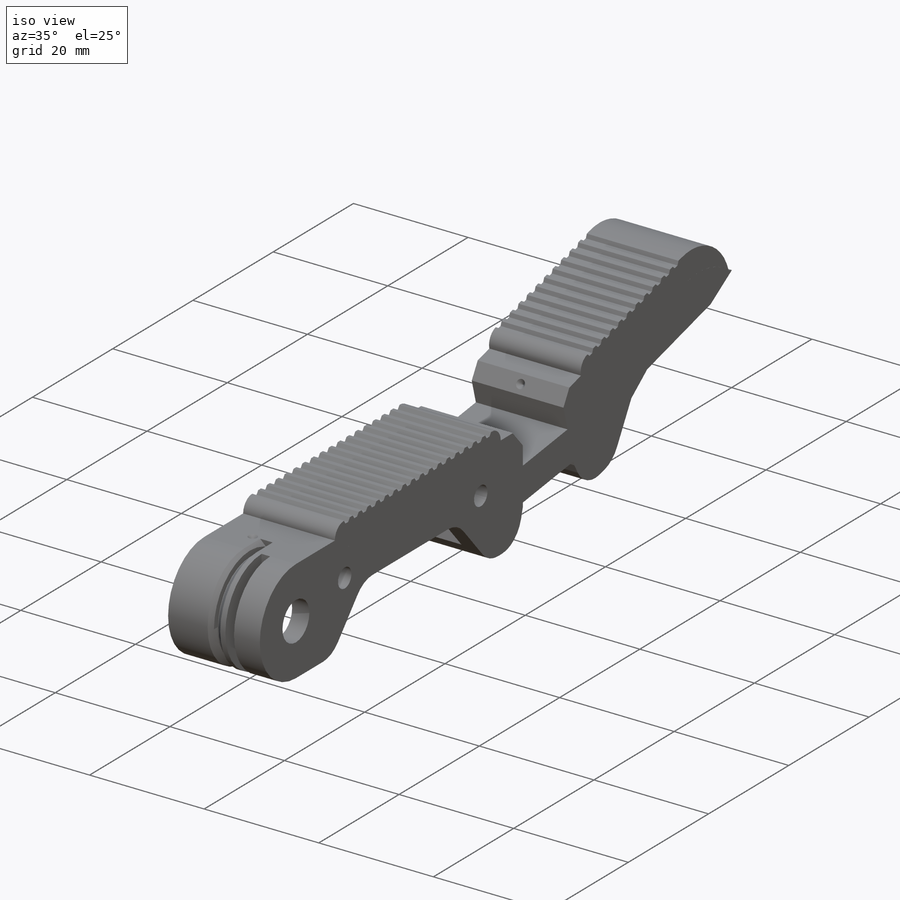
[diagram: iso view]
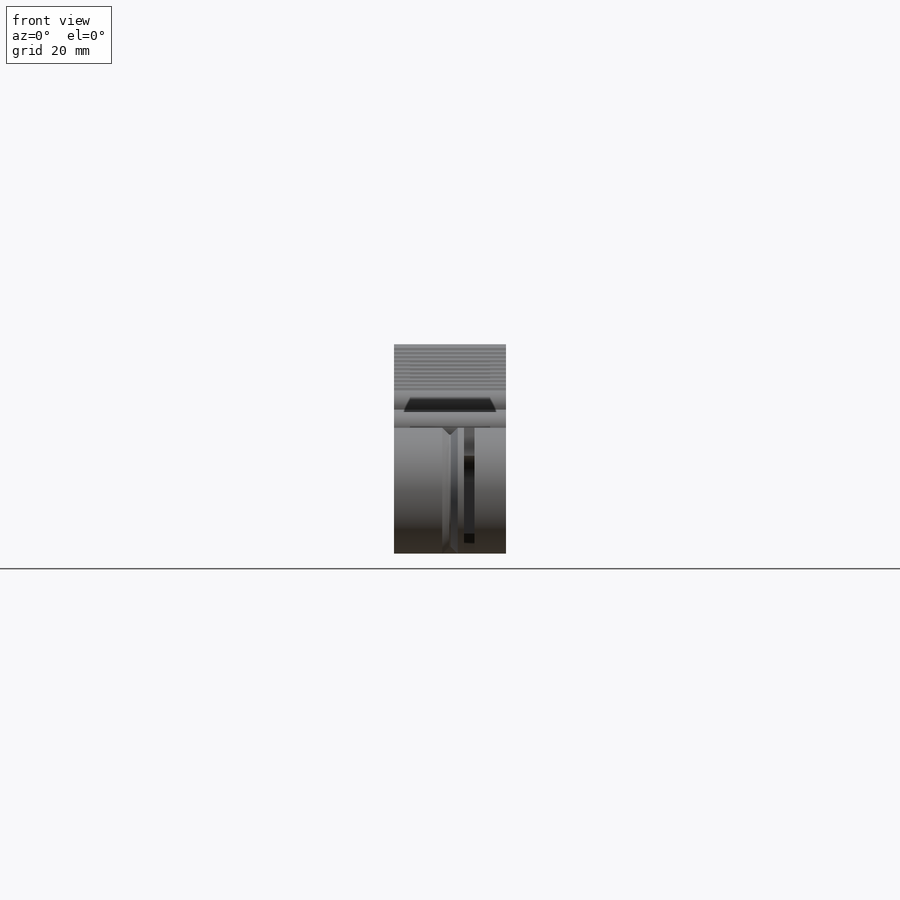
[diagram: front view]
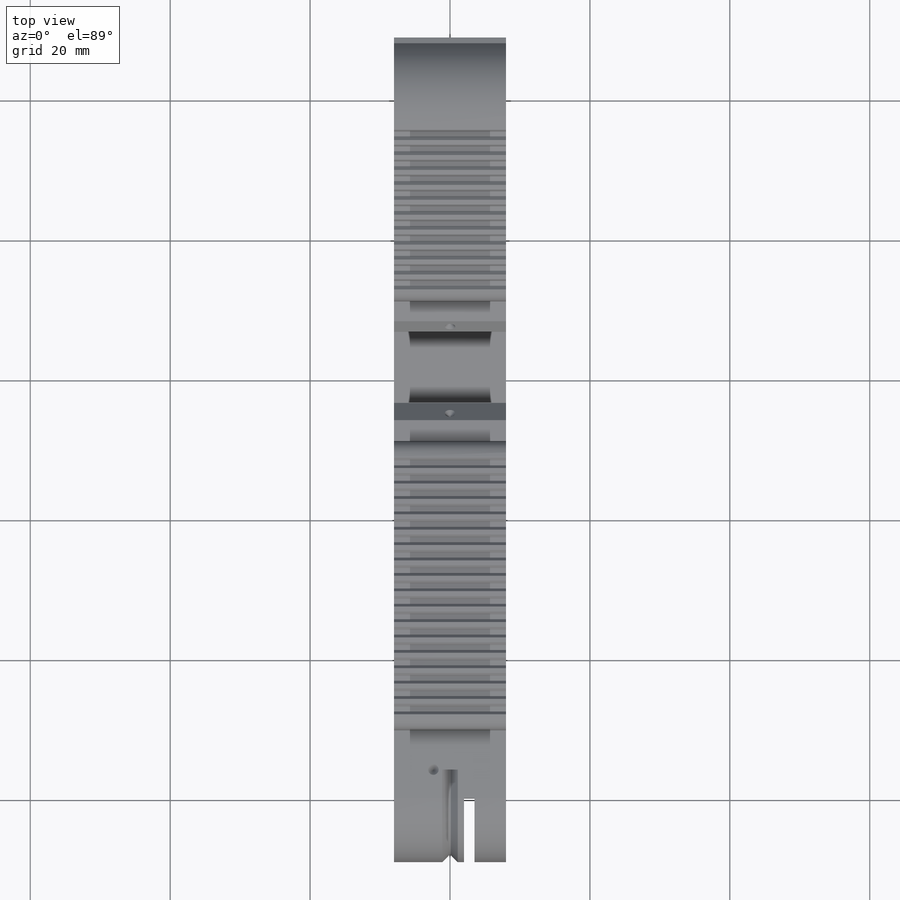
[diagram: top view]
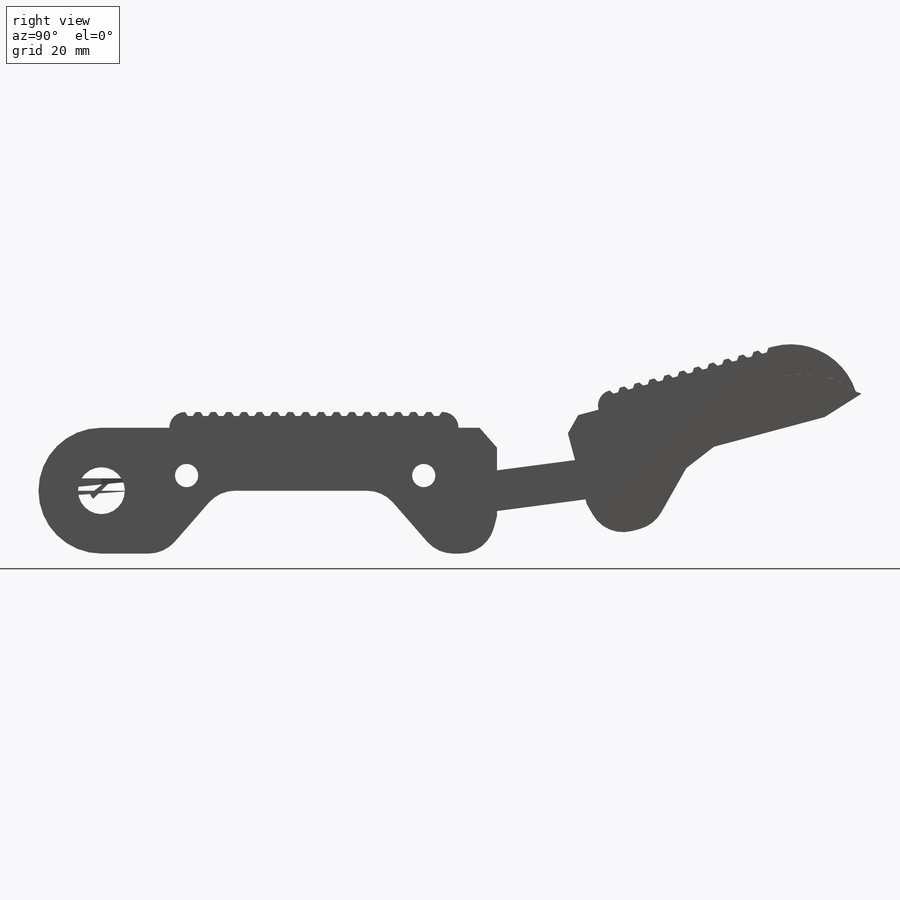
[diagram: right view]
SOLIDWORKS PART (.sldprt)
format: sldprt  version: not decoded by parser v0  size: 2,024,960 bytes
history: native  units: mm
features: sketch x28, cut_extrude x17, extrude x11, chamfer x6, boolean_combine x2, material x1, fillet x1 + 2 further entries (+28 scaffold rows collapsed; 11 parser-record rows omitted)
feature tree (107):
  scaffold x28  (default folders/planes/origin — collapsed)
  material  "ABS"
  "params_finger_t"
  parser-record x11  (decoder bookkeeping rows leaked as tree rows — omitted from the tree; the rows remain in map.json)
  "params_print"
  sketch  "Sketch1"  dims[c1.D1=6.35mm c1.D2=62.5mm c1.D3=12.0mm c1.D4=37.5mm c1.D5=~31.608342mm c2.D5=15.0deg c2.D6=~7.168137mm c2.D7=18.0mm]
  extrude  "Finger Frame"  Depth=16mm
  sketch  "Sketch2"  dims[D3=2.25mm D4=1.5mm D1=0.7mm D2=3.0mm]
  cut_extrude  "Cavity - Flexure"  [1 undecoded]
  sketch  "Sketch3"  dims[D1=1.5mm]
  extrude  "Flexure Anchors"  [1 undecoded]
  sketch  "Sketch4"  dims[D5=3.175mm D1=1.5mm D2=8.0mm D3=1.5mm D4=8.0mm D6=6.8375mm D7=3.0mm D8=12.175mm]
  cut_extrude  "Tendon Routing Features"  [1 undecoded]
  sketch  "Sketch5"  dims[D2=1.5mm D1=1.5mm]
  cut_extrude  "Tendon Port 1"  Depth=0.75mm
  sketch  "Sketch6"  dims[D2=1.5mm D1=1.5mm]
  cut_extrude  "Tendon Port 2"  Depth=0.75mm
  chamfer  "Tendon Port Contouring"  Distance=0.75mm Angle=45deg
  sketch  "Sketch7"  dims[D1=2.3mm D2=2.3mm D3=2.95mm D4=9.0mm]
  extrude  "Finger Pad Outline"  [1 undecoded]
  sketch  "Sketch8"  dims[D1=8.5mm]
  cut_extrude  "Finger Outline"  [1 undecoded]
  sketch  "Sketch9"  dims[D3=0.7mm D1=0.7mm D2=0.7mm]
  cut_extrude  "Cavity - Finger Pads"  [1 undecoded]
  sketch  "Sketch10"
  extrude  "Pad Hooks"  Depth=13mm
  sketch  "Sketch11"  dims[D1=~36.849828mm D2=~24.18954mm D3=0.7mm D4=1.5mm D6=2.2mm D8=2.2mm D5=17.0 D7=11.0]
  extrude  "Pad Ridges"  [1 undecoded]
  sketch  "Sketch12"  dims[D1=10.0mm D2=~44.790732mm]
  cut_extrude  "Back Cutaway"  Depth=10mm
  sketch  "Sketch13"  dims[D1=16.0mm]
  cut_extrude  "Tendon Track"  Depth=0.2mm
  chamfer  "Tendon Track Chamfer"  Distance=1mm Angle=45deg
  sketch  "Sketch14"  dims[c1.D1=3.175mm c1.D2=6.35mm c2.D1=0.075mm c2.D2=0.175mm]
  cut_extrude  "Print Clearance - Pins"  [1 undecoded]
  fillet  "Finger Contouring"  Radius=5mm
  sketch  "Sketch17"  dims[D1=5.0mm]
  extrude  "Insert Base"  [1 undecoded]
  sketch  "Sketch18"  dims[D1=3.7mm]
  cut_extrude  "Clearance - Insert"  Depth=4.5mm
  sketch  "Sketch15"  dims[D2=1.5mm D1=2.38mm]
  cut_extrude  "Spring Port"  Depth=0.75mm
  chamfer  "Spring Port Chamfer"  Distance=0.75mm Angle=45deg
  sketch  "Sketch16"  dims[D1=2.75mm D2=1.5mm D3=9.0mm]
  cut_extrude  "Clearance - Spring Track"  [1 undecoded]
  sketch  "Sketch20"  dims[D1=1.5mm]
  cut_extrude  "Extension Spring Anchor"  Depth=0.75mm
  chamfer  "Anchor Chamfer"  Distance=0.75mm Angle=45deg
  sketch  "Sketch21"  dims[D1=18.0mm D2=0.5mm]
  cut_extrude  "Anchor Tendon Track"  Depth=1mm
  chamfer  "Anchor Tendon Track Chamfer"  Distance=0.5mm Angle=45deg
  sketch  "Sketch22"  dims[D1=0.0mm D2=0.0mm D3=0.0mm]
  extrude  "Pad Material"  [1 undecoded]
  sketch  "Sketch23"  dims[D1=0.0mm D2=0.0mm]
  cut_extrude  "Wall Removal"  [1 undecoded]
  sketch  "Sketch24"  dims[D1=0.0mm D2=6.0mm]
  extrude  "Mold Base"  Depth=3mm
  sketch  "Sketch25"  dims[D1=0.0mm D2=3.0mm]
  extrude  "Mold Outer Wall"  [1 undecoded]
  sketch  "Sketch26"  dims[D1=0.0mm D2=0.075mm D3=0.075mm]
  cut_extrude  "Clearance - Inner Mold"  [1 undecoded]
  boolean_combine  "Combine - Mold"
  sketch  "Sketch27"  dims[D1=0.075mm D2=0.075mm]
  extrude  "Mold Outermost Wall"  Depth=3mm
  boolean_combine  "Print Clearance - Mold Lip"
  sketch  "Sketch28"  dims[D1=0.075mm]
  cut_extrude  "Mold Split"  [1 undecoded]
  sketch  "Sketch29"  dims[D1=3.0mm]
  extrude  "Mold Tab"  Depth=10mm
  chamfer  "Mold Tab Chamfer"  Distance=3mm Angle=45deg
decode coverage: 47 of 65 modeling features carry decoded parameters; 2 rows unclassified (native names shown)
note: ~ marks probable driven/reference dimensions
note: 15 parameter values undecoded
summary: no parameter record found for 15 features
note: suppression state not decoded; provenance and decode notes live in map.json
